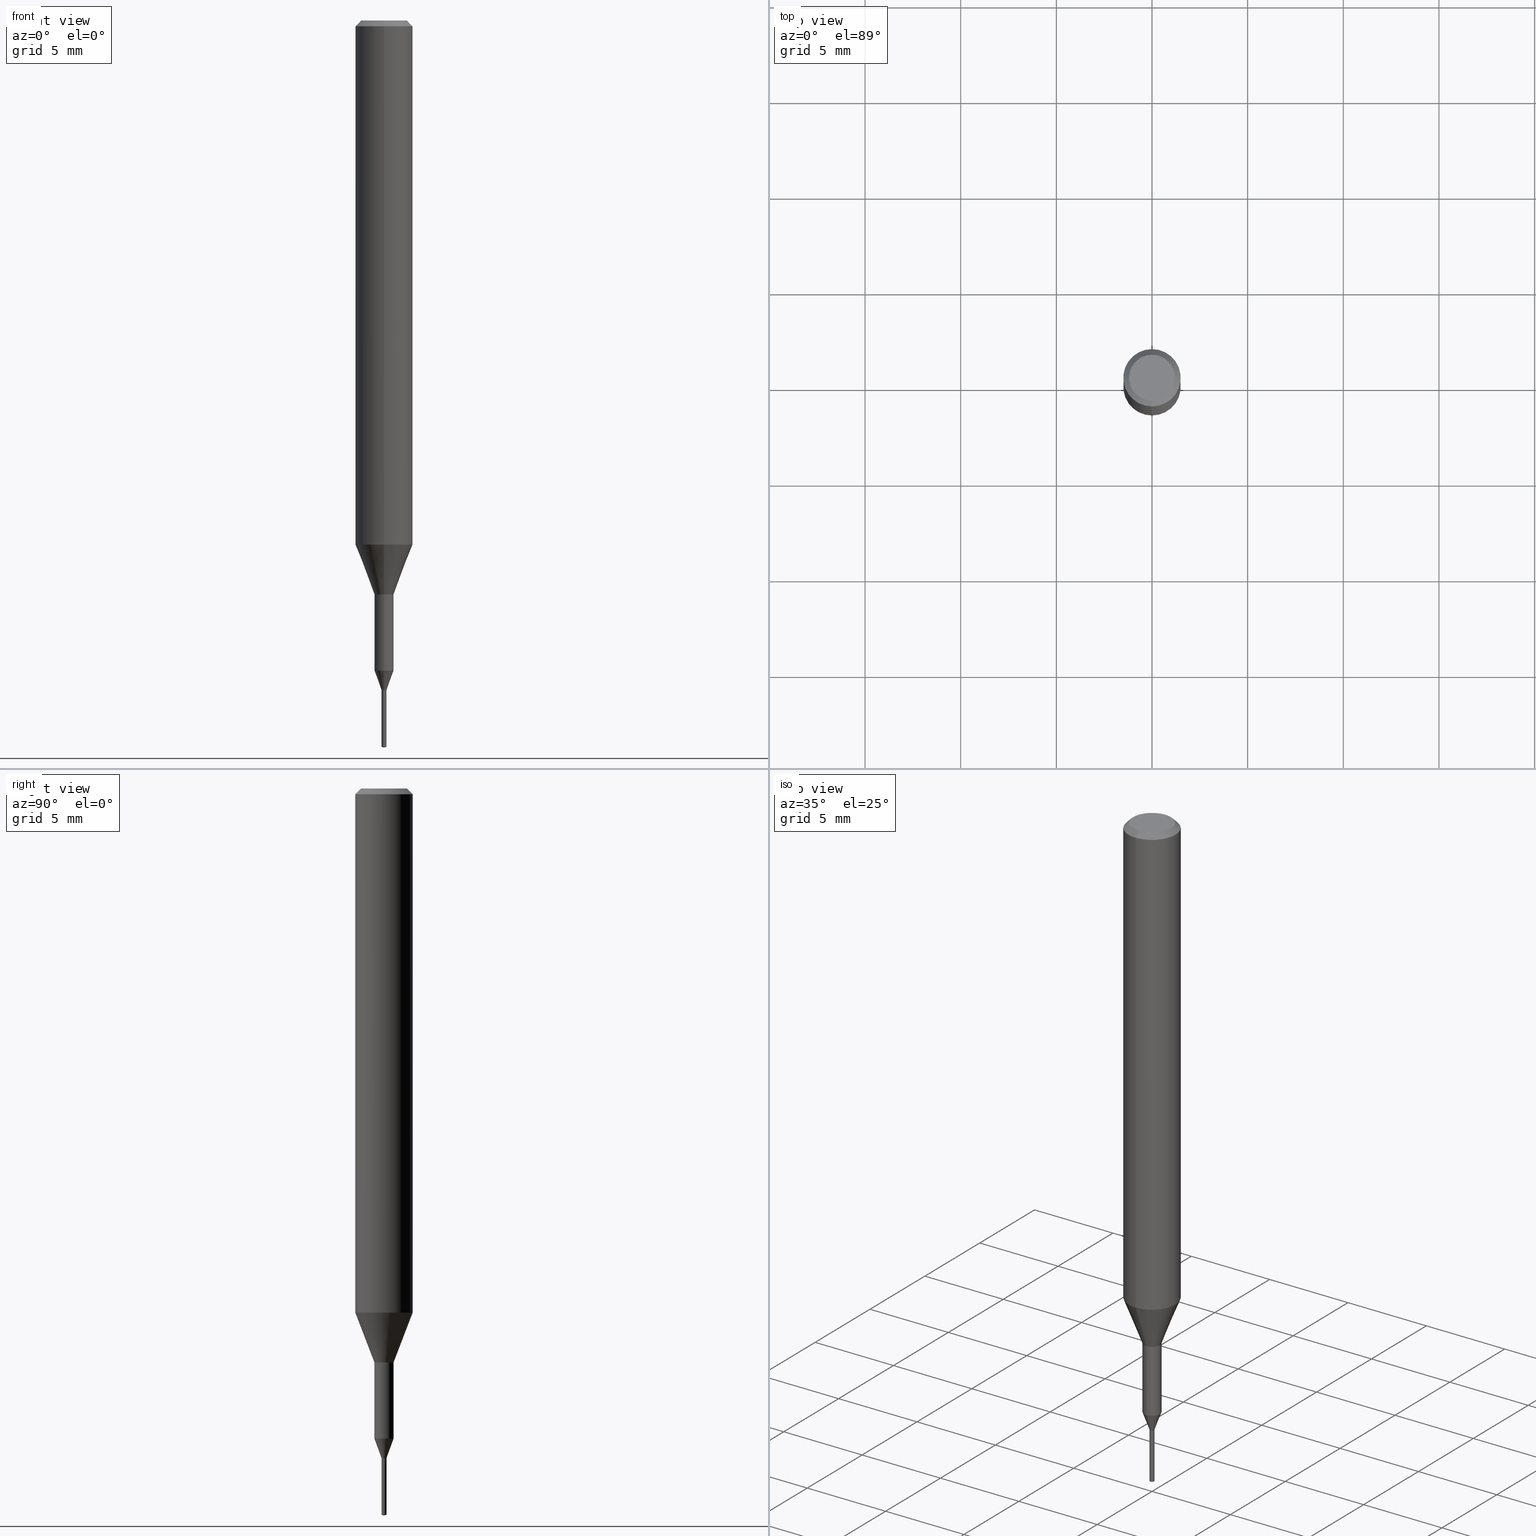
[diagram: canonical four-view strip — front | top / right | iso, engineering-drawing reading convention]
A machine part, canonical four-view strip (front | top / right | iso — engineering-drawing reading convention). The complete STEP part file that produces these views, byte-faithful:
ISO-10303-21;
HEADER;
FILE_DESCRIPTION(('no description'),'unknown implementation level');
FILE_NAME('C-UMD2026-030-Huellk.stp','  ',('CIMSOURCE GmbH'),('CADClick - KiM GmbH - www.kimweb.de'),'unknown preprocess','ACIS','unknown authorization');
FILE_SCHEMA(('automotive_design'));
ENDSEC;
DATA;
#1=MECHANICAL_DESIGN_GEOMETRIC_PRESENTATION_REPRESENTATION(' ',(#14,#15,#16,#17,#18,#19,#20,#21,#22,#23,#24,#25,#26,#27,#28,#29,#30,#31,#32,#33,#34,#35,#36,#37,#38,#39,#40,#41,#42,#43,#44,#45,#46,#47,#48,#49,#50,#51,#52,#53,#54,#55,#56,#57,#58,#59,#60,#61,#62,#63,#64,#65,#66,#67,#68,#69,#70,#71,#72,#73,#74,#75,#76,#77,#78,#79,#80,#81,#82,#83,#84,#85,#86,#87,#88,#89,#90,#91,#92),#10);
#2=PRODUCT_DEFINITION_CONTEXT('',#93,'design');
#3=APPLICATION_PROTOCOL_DEFINITION('INTERNATIONAL STANDARD','automotive_design',1994,#93);
#4=PRODUCT_CATEGORY_RELATIONSHIP('NONE','NONE',#94,#95);
#5=SHAPE_DEFINITION_REPRESENTATION(#96,#97);
#6=PRODUCT_DEFINITION_CONTEXT('',#98,'design');
#7=APPLICATION_PROTOCOL_DEFINITION('INTERNATIONAL STANDARD','automotive_design',1994,#98);
#8=PRODUCT_CATEGORY_RELATIONSHIP('NONE','NONE',#99,#100);
#9=SHAPE_DEFINITION_REPRESENTATION(#101,#102);
#10= (GEOMETRIC_REPRESENTATION_CONTEXT(3)GLOBAL_UNCERTAINTY_ASSIGNED_CONTEXT((#105))GLOBAL_UNIT_ASSIGNED_CONTEXT((#107,#108,#109))REPRESENTATION_CONTEXT('NONE','WORKSPACE'));
#14=STYLED_ITEM('',(#111),#112);
#15=STYLED_ITEM('',(#113),#114);
#16=STYLED_ITEM('',(#115),#116);
#17=STYLED_ITEM('',(#117),#118);
#18=STYLED_ITEM('',(#119),#120);
#19=STYLED_ITEM('',(#121),#122);
#20=STYLED_ITEM('',(#123),#124);
#21=STYLED_ITEM('',(#125),#126);
#22=STYLED_ITEM('',(#127),#128);
#23=STYLED_ITEM('',(#129),#130);
#24=STYLED_ITEM('',(#131),#132);
#25=STYLED_ITEM('',(#133),#134);
#26=STYLED_ITEM('',(#135),#136);
#27=STYLED_ITEM('',(#137),#138);
#28=STYLED_ITEM('',(#139),#140);
#29=STYLED_ITEM('',(#141),#142);
#30=STYLED_ITEM('',(#143),#144);
#31=STYLED_ITEM('',(#145),#146);
#32=STYLED_ITEM('',(#147),#148);
#33=STYLED_ITEM('',(#149),#150);
#34=STYLED_ITEM('',(#151),#152);
#35=STYLED_ITEM('',(#153),#154);
#36=STYLED_ITEM('',(#155),#156);
#37=STYLED_ITEM('',(#157),#158);
#38=STYLED_ITEM('',(#159),#160);
#39=STYLED_ITEM('',(#161),#162);
#40=STYLED_ITEM('',(#163),#164);
#41=STYLED_ITEM('',(#165),#166);
#42=STYLED_ITEM('',(#167),#168);
#43=STYLED_ITEM('',(#169),#170);
#44=STYLED_ITEM('',(#171),#172);
#45=STYLED_ITEM('',(#173),#174);
#46=STYLED_ITEM('',(#175),#176);
#47=STYLED_ITEM('',(#177),#178);
#48=STYLED_ITEM('',(#179),#180);
#49=STYLED_ITEM('',(#181),#182);
#50=STYLED_ITEM('',(#183),#184);
#51=STYLED_ITEM('',(#185),#186);
#52=STYLED_ITEM('',(#187),#188);
#53=STYLED_ITEM('',(#189),#190);
#54=STYLED_ITEM('',(#191),#192);
#55=STYLED_ITEM('',(#193),#194);
#56=STYLED_ITEM('',(#195),#196);
#57=STYLED_ITEM('',(#197),#198);
#58=STYLED_ITEM('',(#199),#200);
#59=STYLED_ITEM('',(#201),#202);
#60=STYLED_ITEM('',(#203),#204);
#61=STYLED_ITEM('',(#205),#206);
#62=STYLED_ITEM('',(#207),#208);
#63=STYLED_ITEM('',(#209),#210);
#64=STYLED_ITEM('',(#211),#212);
#65=STYLED_ITEM('',(#213),#214);
#66=STYLED_ITEM('',(#215),#216);
#67=STYLED_ITEM('',(#217),#218);
#68=STYLED_ITEM('',(#219),#220);
#69=STYLED_ITEM('',(#221),#222);
#70=STYLED_ITEM('',(#223),#224);
#71=STYLED_ITEM('',(#225),#226);
#72=STYLED_ITEM('',(#227),#228);
#73=STYLED_ITEM('',(#229),#230);
#74=STYLED_ITEM('',(#231),#232);
#75=STYLED_ITEM('',(#233),#234);
#76=STYLED_ITEM('',(#235),#236);
#77=STYLED_ITEM('',(#237),#238);
#78=STYLED_ITEM('',(#239),#240);
#79=STYLED_ITEM('',(#241),#242);
#80=STYLED_ITEM('',(#243),#244);
#81=STYLED_ITEM('',(#245),#246);
#82=STYLED_ITEM('',(#247),#248);
#83=STYLED_ITEM('',(#249),#250);
#84=STYLED_ITEM('',(#251),#252);
#85=STYLED_ITEM('',(#253),#254);
#86=STYLED_ITEM('',(#255),#256);
#87=STYLED_ITEM('',(#257),#258);
#88=STYLED_ITEM('',(#259),#260);
#89=STYLED_ITEM('',(#261),#262);
#90=STYLED_ITEM('',(#263),#264);
#91=STYLED_ITEM('',(#265),#266);
#92=STYLED_ITEM('',(#267),#268);
#93=APPLICATION_CONTEXT(' ');
#94=PRODUCT_CATEGORY('part','NONE');
#95=PRODUCT_RELATED_PRODUCT_CATEGORY('detail',' ',(#269));
#96=PRODUCT_DEFINITION_SHAPE('NONE','NONE',#270);
#97=ADVANCED_BREP_SHAPE_REPRESENTATION('1',(#226,#271),#10);
#98=APPLICATION_CONTEXT(' ');
#99=PRODUCT_CATEGORY('part','NONE');
#100=PRODUCT_RELATED_PRODUCT_CATEGORY('detail',' ',(#272));
#101=PRODUCT_DEFINITION_SHAPE('NONE','NONE',#273);
#102=ADVANCED_BREP_SHAPE_REPRESENTATION('2',(#114,#274),#10);
#105=UNCERTAINTY_MEASURE_WITH_UNIT(LENGTH_MEASURE(1.0E-006),#107,'','');
#107= (CONVERSION_BASED_UNIT('MILLIMETRE',#277)LENGTH_UNIT()NAMED_UNIT(#280));
#108= (NAMED_UNIT(#282)PLANE_ANGLE_UNIT()SI_UNIT($,.RADIAN.));
#109= (NAMED_UNIT(#282)SOLID_ANGLE_UNIT()SI_UNIT($,.STERADIAN.));
#111=PRESENTATION_STYLE_ASSIGNMENT((#288));
#112=EDGE_CURVE('',#172,#228,#289,.T.);
#113=PRESENTATION_STYLE_ASSIGNMENT((#290));
#114=MANIFOLD_SOLID_BREP('2',#291);
#115=PRESENTATION_STYLE_ASSIGNMENT((#292));
#116=VERTEX_POINT('',#293);
#117=PRESENTATION_STYLE_ASSIGNMENT((#294));
#118=VERTEX_POINT('',#295);
#119=PRESENTATION_STYLE_ASSIGNMENT((#296));
#120=VERTEX_POINT('',#297);
#121=PRESENTATION_STYLE_ASSIGNMENT((#298));
#122=ADVANCED_FACE('',(#299),#300,.T.);
#123=PRESENTATION_STYLE_ASSIGNMENT((#301));
#124=EDGE_CURVE('',#244,#116,#302,.T.);
#125=PRESENTATION_STYLE_ASSIGNMENT((#303));
#126=EDGE_CURVE('',#228,#116,#304,.T.);
#127=PRESENTATION_STYLE_ASSIGNMENT((#305));
#128=VERTEX_POINT('',#306);
#129=PRESENTATION_STYLE_ASSIGNMENT((#307));
#130=EDGE_CURVE('',#148,#234,#308,.T.);
#131=PRESENTATION_STYLE_ASSIGNMENT((#309));
#132=ADVANCED_FACE('',(#310),#311,.T.);
#133=PRESENTATION_STYLE_ASSIGNMENT((#312));
#134=VERTEX_POINT('',#313);
#135=PRESENTATION_STYLE_ASSIGNMENT((#314));
#136=EDGE_CURVE('',#120,#134,#315,.T.);
#137=PRESENTATION_STYLE_ASSIGNMENT((#316));
#138=EDGE_CURVE('',#234,#148,#317,.T.);
#139=PRESENTATION_STYLE_ASSIGNMENT((#318));
#140=EDGE_CURVE('',#184,#214,#319,.T.);
#141=PRESENTATION_STYLE_ASSIGNMENT((#320));
#142=EDGE_CURVE('',#154,#128,#321,.T.);
#143=PRESENTATION_STYLE_ASSIGNMENT((#322));
#144=ADVANCED_FACE('',(#323),#324,.T.);
#145=PRESENTATION_STYLE_ASSIGNMENT((#325));
#146=ADVANCED_FACE('',(#326),#327,.T.);
#147=PRESENTATION_STYLE_ASSIGNMENT((#328));
#148=VERTEX_POINT('',#329);
#149=PRESENTATION_STYLE_ASSIGNMENT((#330));
#150=ADVANCED_FACE('',(#331),#332,.T.);
#151=PRESENTATION_STYLE_ASSIGNMENT((#333));
#152=ADVANCED_FACE('',(#334),#335,.T.);
#153=PRESENTATION_STYLE_ASSIGNMENT((#336));
#154=VERTEX_POINT('',#337);
#155=PRESENTATION_STYLE_ASSIGNMENT((#338));
#156=ADVANCED_FACE('',(#339),#340,.T.);
#157=PRESENTATION_STYLE_ASSIGNMENT((#341));
#158=VERTEX_POINT('',#342);
#159=PRESENTATION_STYLE_ASSIGNMENT((#343));
#160=ADVANCED_FACE('',(#344),#345,.T.);
#161=PRESENTATION_STYLE_ASSIGNMENT((#346));
#162=EDGE_CURVE('',#258,#118,#347,.T.);
#163=PRESENTATION_STYLE_ASSIGNMENT((#348));
#164=EDGE_CURVE('',#172,#214,#349,.T.);
#165=PRESENTATION_STYLE_ASSIGNMENT((#350));
#166=EDGE_CURVE('',#118,#154,#351,.T.);
#167=PRESENTATION_STYLE_ASSIGNMENT((#352));
#168=ADVANCED_FACE('',(#353),#354,.T.);
#169=PRESENTATION_STYLE_ASSIGNMENT((#355));
#170=EDGE_CURVE('',#174,#118,#356,.T.);
#171=PRESENTATION_STYLE_ASSIGNMENT((#357));
#172=VERTEX_POINT('',#358);
#173=PRESENTATION_STYLE_ASSIGNMENT((#359));
#174=VERTEX_POINT('',#360);
#175=PRESENTATION_STYLE_ASSIGNMENT((#361));
#176=ADVANCED_FACE('',(#362),#363,.T.);
#177=PRESENTATION_STYLE_ASSIGNMENT((#364));
#178=EDGE_CURVE('',#246,#134,#365,.T.);
#179=PRESENTATION_STYLE_ASSIGNMENT((#366));
#180=ADVANCED_FACE('',(#367,#368),#369,.T.);
#181=PRESENTATION_STYLE_ASSIGNMENT((#370));
#182=EDGE_CURVE('',#154,#238,#371,.T.);
#183=PRESENTATION_STYLE_ASSIGNMENT((#372));
#184=VERTEX_POINT('',#373);
#185=PRESENTATION_STYLE_ASSIGNMENT((#374));
#186=EDGE_CURVE('',#116,#244,#375,.T.);
#187=PRESENTATION_STYLE_ASSIGNMENT((#376));
#188=ADVANCED_FACE('',(#377),#378,.T.);
#189=PRESENTATION_STYLE_ASSIGNMENT((#379));
#190=EDGE_CURVE('',#158,#238,#380,.T.);
#191=PRESENTATION_STYLE_ASSIGNMENT((#381));
#192=EDGE_CURVE('',#262,#174,#382,.T.);
#193=PRESENTATION_STYLE_ASSIGNMENT((#383));
#194=EDGE_CURVE('',#244,#184,#384,.T.);
#195=PRESENTATION_STYLE_ASSIGNMENT((#385));
#196=EDGE_CURVE('',#158,#128,#386,.T.);
#197=PRESENTATION_STYLE_ASSIGNMENT((#387));
#198=EDGE_CURVE('',#238,#158,#388,.T.);
#199=PRESENTATION_STYLE_ASSIGNMENT((#389));
#200=EDGE_CURVE('',#248,#264,#390,.T.);
#201=PRESENTATION_STYLE_ASSIGNMENT((#391));
#202=EDGE_CURVE('',#214,#172,#392,.T.);
#203=PRESENTATION_STYLE_ASSIGNMENT((#393));
#204=EDGE_CURVE('',#184,#228,#394,.T.);
#205=PRESENTATION_STYLE_ASSIGNMENT((#395));
#206=EDGE_CURVE('',#248,#246,#396,.T.);
#207=PRESENTATION_STYLE_ASSIGNMENT((#397));
#208=EDGE_CURVE('',#174,#262,#398,.T.);
#209=PRESENTATION_STYLE_ASSIGNMENT((#399));
#210=EDGE_CURVE('',#228,#184,#400,.T.);
#211=PRESENTATION_STYLE_ASSIGNMENT((#401));
#212=ADVANCED_FACE('',(#402),#403,.T.);
#213=PRESENTATION_STYLE_ASSIGNMENT((#404));
#214=VERTEX_POINT('',#405);
#215=PRESENTATION_STYLE_ASSIGNMENT((#406));
#216=EDGE_CURVE('',#246,#248,#407,.T.);
#217=PRESENTATION_STYLE_ASSIGNMENT((#408));
#218=ADVANCED_FACE('',(#409),#410,.T.);
#219=PRESENTATION_STYLE_ASSIGNMENT((#411));
#220=ADVANCED_FACE('',(#412),#413,.T.);
#221=PRESENTATION_STYLE_ASSIGNMENT((#414));
#222=EDGE_CURVE('',#118,#258,#415,.T.);
#223=PRESENTATION_STYLE_ASSIGNMENT((#416));
#224=EDGE_CURVE('',#258,#262,#417,.T.);
#225=PRESENTATION_STYLE_ASSIGNMENT((#418));
#226=MANIFOLD_SOLID_BREP('1',#419);
#227=PRESENTATION_STYLE_ASSIGNMENT((#420));
#228=VERTEX_POINT('',#421);
#229=PRESENTATION_STYLE_ASSIGNMENT((#422));
#230=ADVANCED_FACE('',(#423),#424,.T.);
#231=PRESENTATION_STYLE_ASSIGNMENT((#425));
#232=ADVANCED_FACE('',(#426),#427,.T.);
#233=PRESENTATION_STYLE_ASSIGNMENT((#428));
#234=VERTEX_POINT('',#429);
#235=PRESENTATION_STYLE_ASSIGNMENT((#430));
#236=EDGE_CURVE('',#148,#120,#431,.T.);
#237=PRESENTATION_STYLE_ASSIGNMENT((#432));
#238=VERTEX_POINT('',#433);
#239=PRESENTATION_STYLE_ASSIGNMENT((#434));
#240=EDGE_CURVE('',#134,#120,#435,.T.);
#241=PRESENTATION_STYLE_ASSIGNMENT((#436));
#242=ADVANCED_FACE('',(#437),#438,.T.);
#243=PRESENTATION_STYLE_ASSIGNMENT((#439));
#244=VERTEX_POINT('',#440);
#245=PRESENTATION_STYLE_ASSIGNMENT((#441));
#246=VERTEX_POINT('',#442);
#247=PRESENTATION_STYLE_ASSIGNMENT((#443));
#248=VERTEX_POINT('',#444);
#249=PRESENTATION_STYLE_ASSIGNMENT((#445));
#250=EDGE_CURVE('',#264,#246,#446,.T.);
#251=PRESENTATION_STYLE_ASSIGNMENT((#447));
#252=EDGE_CURVE('',#128,#154,#448,.T.);
#253=PRESENTATION_STYLE_ASSIGNMENT((#449));
#254=ADVANCED_FACE('',(#450),#451,.T.);
#255=PRESENTATION_STYLE_ASSIGNMENT((#452));
#256=ADVANCED_FACE('',(#453),#454,.T.);
#257=PRESENTATION_STYLE_ASSIGNMENT((#455));
#258=VERTEX_POINT('',#456);
#259=PRESENTATION_STYLE_ASSIGNMENT((#457));
#260=EDGE_CURVE('',#128,#258,#458,.T.);
#261=PRESENTATION_STYLE_ASSIGNMENT((#459));
#262=VERTEX_POINT('',#460);
#263=PRESENTATION_STYLE_ASSIGNMENT((#461));
#264=VERTEX_POINT('',#462);
#265=PRESENTATION_STYLE_ASSIGNMENT((#463));
#266=EDGE_CURVE('',#120,#248,#464,.T.);
#267=PRESENTATION_STYLE_ASSIGNMENT((#465));
#268=EDGE_CURVE('',#134,#234,#466,.T.);
#269=PRODUCT('1','1','PART-1-DESC',(#467));
#270=PRODUCT_DEFINITION('NONE','NONE',#468,#2);
#271=AXIS2_PLACEMENT_3D('',#469,#470,#471);
#272=PRODUCT('2','2','PART-2-DESC',(#472));
#273=PRODUCT_DEFINITION('NONE','NONE',#473,#6);
#274=AXIS2_PLACEMENT_3D('',#474,#475,#476);
#277=LENGTH_MEASURE_WITH_UNIT(LENGTH_MEASURE(1.0),#477);
#280=DIMENSIONAL_EXPONENTS(1.0,0.0,0.0,0.0,0.0,0.0,0.0);
#282=DIMENSIONAL_EXPONENTS(0.0,0.0,0.0,0.0,0.0,0.0,0.0);
#288=CURVE_STYLE('',#478,POSITIVE_LENGTH_MEASURE(1.0E-006),#479);
#289=LINE('',#480,#481);
#290=SURFACE_STYLE_USAGE(.BOTH.,#482);
#291=CLOSED_SHELL('',(#176,#218,#220,#168,#242,#254,#232));
#292=POINT_STYLE(' ',#483,POSITIVE_LENGTH_MEASURE(1.0E-006),#484);
#293=CARTESIAN_POINT('',(6.12241946593498E-017,-0.49995,-30.0));
#294=POINT_STYLE(' ',#485,POSITIVE_LENGTH_MEASURE(1.0E-006),#486);
#295=CARTESIAN_POINT('',(0.0,1.5,-0.300000000000001));
#296=POINT_STYLE(' ',#487,POSITIVE_LENGTH_MEASURE(1.0E-006),#488);
#297=CARTESIAN_POINT('',(-0.13,0.0,-35.0));
#298=SURFACE_STYLE_USAGE(.BOTH.,#489);
#299=FACE_OUTER_BOUND('',#490,.T.);
#300=CONICAL_SURFACE('',#491,1.0,0.366530581623394);
#301=CURVE_STYLE('',#492,POSITIVE_LENGTH_MEASURE(1.0E-006),#493);
#302=CIRCLE('',#494,0.49995);
#303=CURVE_STYLE('',#495,POSITIVE_LENGTH_MEASURE(1.0E-006),#496);
#304=LINE('',#497,#498);
#305=POINT_STYLE(' ',#499,POSITIVE_LENGTH_MEASURE(1.0E-006),#500);
#306=CARTESIAN_POINT('',(1.83690953073357E-016,-1.5,-27.395));
#307=CURVE_STYLE('',#501,POSITIVE_LENGTH_MEASURE(1.0E-006),#502);
#308=CIRCLE('',#503,0.131036381514258);
#309=SURFACE_STYLE_USAGE(.BOTH.,#504);
#310=FACE_OUTER_BOUND('',#505,.T.);
#311=CYLINDRICAL_SURFACE('',#506,0.49995);
#312=POINT_STYLE(' ',#507,POSITIVE_LENGTH_MEASURE(1.0E-006),#508);
#313=CARTESIAN_POINT('',(0.13,1.59198825996909E-017,-35.0));
#314=CURVE_STYLE('',#509,POSITIVE_LENGTH_MEASURE(1.0E-006),#510);
#315=CIRCLE('',#511,0.13);
#316=CURVE_STYLE('',#512,POSITIVE_LENGTH_MEASURE(1.0E-006),#513);
#317=CIRCLE('',#514,0.131036381514258);
#318=CURVE_STYLE('',#515,POSITIVE_LENGTH_MEASURE(1.0E-006),#516);
#319=LINE('',#517,#518);
#320=CURVE_STYLE('',#519,POSITIVE_LENGTH_MEASURE(1.0E-006),#520);
#321=CIRCLE('',#521,1.5);
#322=SURFACE_STYLE_USAGE(.BOTH.,#522);
#323=FACE_OUTER_BOUND('',#523,.T.);
#324=CONICAL_SURFACE('',#524,1.35,0.785398163397447);
#325=SURFACE_STYLE_USAGE(.BOTH.,#525);
#326=FACE_OUTER_BOUND('',#526,.T.);
#327=CYLINDRICAL_SURFACE('',#527,0.49995);
#328=POINT_STYLE(' ',#528,POSITIVE_LENGTH_MEASURE(1.0E-006),#529);
#329=CARTESIAN_POINT('',(-0.131036381514258,0.0,-34.9999));
#330=SURFACE_STYLE_USAGE(.BOTH.,#530);
#331=FACE_OUTER_BOUND('',#531,.T.);
#332=CONICAL_SURFACE('',#532,1.0,0.366530581623394);
#333=SURFACE_STYLE_USAGE(.BOTH.,#533);
#334=FACE_OUTER_BOUND('',#534,.T.);
#335=PLANE('',#535);
#336=POINT_STYLE(' ',#536,POSITIVE_LENGTH_MEASURE(1.0E-006),#537);
#337=CARTESIAN_POINT('',(0.0,1.5,-27.395));
#338=SURFACE_STYLE_USAGE(.BOTH.,#538);
#339=FACE_OUTER_BOUND('',#539,.T.);
#340=PLANE('',#540);
#341=POINT_STYLE(' ',#541,POSITIVE_LENGTH_MEASURE(1.0E-006),#542);
#342=CARTESIAN_POINT('',(6.12303176911189E-017,-0.5,-30.0));
#343=SURFACE_STYLE_USAGE(.BOTH.,#543);
#344=FACE_OUTER_BOUND('',#544,.T.);
#345=CONICAL_SURFACE('',#545,0.314993188298918,0.348885476062644);
#346=CURVE_STYLE('',#546,POSITIVE_LENGTH_MEASURE(1.0E-006),#547);
#347=CIRCLE('',#548,1.5);
#348=CURVE_STYLE('',#549,POSITIVE_LENGTH_MEASURE(1.0E-006),#550);
#349=CIRCLE('',#551,0.130036376597837);
#350=CURVE_STYLE('',#552,POSITIVE_LENGTH_MEASURE(1.0E-006),#553);
#351=LINE('',#554,#555);
#352=SURFACE_STYLE_USAGE(.BOTH.,#556);
#353=FACE_OUTER_BOUND('',#557,.T.);
#354=PLANE('',#558);
#355=CURVE_STYLE('',#559,POSITIVE_LENGTH_MEASURE(1.0E-006),#560);
#356=LINE('',#561,#562);
#357=POINT_STYLE(' ',#563,POSITIVE_LENGTH_MEASURE(1.0E-006),#564);
#358=CARTESIAN_POINT('',(1.5924337300975E-017,-0.130036376597837,-34.9999));
#359=POINT_STYLE(' ',#565,POSITIVE_LENGTH_MEASURE(1.0E-006),#566);
#360=CARTESIAN_POINT('',(0.0,1.2,0.0));
#361=SURFACE_STYLE_USAGE(.BOTH.,#567);
#362=FACE_OUTER_BOUND('',#568,.T.);
#363=CONICAL_SURFACE('',#569,0.065,1.3089969032258);
#364=CURVE_STYLE('',#570,POSITIVE_LENGTH_MEASURE(1.0E-006),#571);
#365=LINE('',#572,#573);
#366=SURFACE_STYLE_USAGE(.BOTH.,#574);
#367=FACE_BOUND('',#575,.T.);
#368=FACE_OUTER_BOUND('',#576,.T.);
#369=PLANE('',#577);
#370=CURVE_STYLE('',#578,POSITIVE_LENGTH_MEASURE(1.0E-006),#579);
#371=LINE('',#580,#581);
#372=POINT_STYLE(' ',#582,POSITIVE_LENGTH_MEASURE(1.0E-006),#583);
#373=CARTESIAN_POINT('',(0.0,0.49995,-33.983));
#374=CURVE_STYLE('',#584,POSITIVE_LENGTH_MEASURE(1.0E-006),#585);
#375=CIRCLE('',#586,0.49995);
#376=SURFACE_STYLE_USAGE(.BOTH.,#587);
#377=FACE_OUTER_BOUND('',#588,.T.);
#378=CONICAL_SURFACE('',#589,0.314993188298918,0.348885476062644);
#379=CURVE_STYLE('',#590,POSITIVE_LENGTH_MEASURE(1.0E-006),#591);
#380=CIRCLE('',#592,0.5);
#381=CURVE_STYLE('',#593,POSITIVE_LENGTH_MEASURE(1.0E-006),#594);
#382=CIRCLE('',#595,1.2);
#383=CURVE_STYLE('',#596,POSITIVE_LENGTH_MEASURE(1.0E-006),#597);
#384=LINE('',#598,#599);
#385=CURVE_STYLE('',#600,POSITIVE_LENGTH_MEASURE(1.0E-006),#601);
#386=LINE('',#602,#603);
#387=CURVE_STYLE('',#604,POSITIVE_LENGTH_MEASURE(1.0E-006),#605);
#388=CIRCLE('',#606,0.5);
#389=CURVE_STYLE('',#607,POSITIVE_LENGTH_MEASURE(1.0E-006),#608);
#390=LINE('',#609,#610);
#391=CURVE_STYLE('',#611,POSITIVE_LENGTH_MEASURE(1.0E-006),#612);
#392=CIRCLE('',#613,0.130036376597837);
#393=CURVE_STYLE('',#614,POSITIVE_LENGTH_MEASURE(1.0E-006),#615);
#394=CIRCLE('',#616,0.49995);
#395=CURVE_STYLE('',#617,POSITIVE_LENGTH_MEASURE(1.0E-006),#618);
#396=CIRCLE('',#619,0.13);
#397=CURVE_STYLE('',#620,POSITIVE_LENGTH_MEASURE(1.0E-006),#621);
#398=CIRCLE('',#622,1.2);
#399=CURVE_STYLE('',#623,POSITIVE_LENGTH_MEASURE(1.0E-006),#624);
#400=CIRCLE('',#625,0.49995);
#401=SURFACE_STYLE_USAGE(.BOTH.,#626);
#402=FACE_OUTER_BOUND('',#627,.T.);
#403=CONICAL_SURFACE('',#628,1.35,0.785398163397447);
#404=POINT_STYLE(' ',#629,POSITIVE_LENGTH_MEASURE(1.0E-006),#630);
#405=CARTESIAN_POINT('',(0.0,0.130036376597837,-34.9999));
#406=CURVE_STYLE('',#631,POSITIVE_LENGTH_MEASURE(1.0E-006),#632);
#407=CIRCLE('',#633,0.13);
#408=SURFACE_STYLE_USAGE(.BOTH.,#634);
#409=FACE_OUTER_BOUND('',#635,.T.);
#410=CYLINDRICAL_SURFACE('',#636,0.13);
#411=SURFACE_STYLE_USAGE(.BOTH.,#637);
#412=FACE_OUTER_BOUND('',#638,.T.);
#413=CONICAL_SURFACE('',#639,0.130518190757129,1.47460454838483);
#414=CURVE_STYLE('',#640,POSITIVE_LENGTH_MEASURE(1.0E-006),#641);
#415=CIRCLE('',#642,1.5);
#416=CURVE_STYLE('',#643,POSITIVE_LENGTH_MEASURE(1.0E-006),#644);
#417=LINE('',#645,#646);
#418=SURFACE_STYLE_USAGE(.BOTH.,#647);
#419=CLOSED_SHELL('',(#188,#146,#150,#230,#212,#156,#144,#256,#122,#180,#132,#160,#152));
#420=POINT_STYLE(' ',#648,POSITIVE_LENGTH_MEASURE(1.0E-006),#649);
#421=CARTESIAN_POINT('',(6.12241946593497E-017,-0.49995,-33.983));
#422=SURFACE_STYLE_USAGE(.BOTH.,#650);
#423=FACE_OUTER_BOUND('',#651,.T.);
#424=CYLINDRICAL_SURFACE('',#652,1.5);
#425=SURFACE_STYLE_USAGE(.BOTH.,#653);
#426=FACE_OUTER_BOUND('',#654,.T.);
#427=CONICAL_SURFACE('',#655,0.065,1.3089969032258);
#428=POINT_STYLE(' ',#656,POSITIVE_LENGTH_MEASURE(1.0E-006),#657);
#429=CARTESIAN_POINT('',(0.131036381514258,1.60467985384253E-017,-34.9999));
#430=CURVE_STYLE('',#658,POSITIVE_LENGTH_MEASURE(1.0E-006),#659);
#431=LINE('',#660,#661);
#432=POINT_STYLE(' ',#662,POSITIVE_LENGTH_MEASURE(1.0E-006),#663);
#433=CARTESIAN_POINT('',(0.0,0.5,-30.0));
#434=CURVE_STYLE('',#664,POSITIVE_LENGTH_MEASURE(1.0E-006),#665);
#435=CIRCLE('',#666,0.13);
#436=SURFACE_STYLE_USAGE(.BOTH.,#667);
#437=FACE_OUTER_BOUND('',#668,.T.);
#438=CONICAL_SURFACE('',#669,0.130518190757129,1.47460454838483);
#439=POINT_STYLE(' ',#670,POSITIVE_LENGTH_MEASURE(1.0E-006),#671);
#440=CARTESIAN_POINT('',(0.0,0.49995,-30.0));
#441=POINT_STYLE(' ',#672,POSITIVE_LENGTH_MEASURE(1.0E-006),#673);
#442=CARTESIAN_POINT('',(0.13,1.59198825996909E-017,-37.9651666));
#443=POINT_STYLE(' ',#674,POSITIVE_LENGTH_MEASURE(1.0E-006),#675);
#444=CARTESIAN_POINT('',(-0.13,0.0,-37.9651666));
#445=CURVE_STYLE('',#676,POSITIVE_LENGTH_MEASURE(1.0E-006),#677);
#446=LINE('',#678,#679);
#447=CURVE_STYLE('',#680,POSITIVE_LENGTH_MEASURE(1.0E-006),#681);
#448=CIRCLE('',#682,1.5);
#449=SURFACE_STYLE_USAGE(.BOTH.,#683);
#450=FACE_OUTER_BOUND('',#684,.T.);
#451=CYLINDRICAL_SURFACE('',#685,0.13);
#452=SURFACE_STYLE_USAGE(.BOTH.,#686);
#453=FACE_OUTER_BOUND('',#687,.T.);
#454=CYLINDRICAL_SURFACE('',#688,1.5);
#455=POINT_STYLE(' ',#689,POSITIVE_LENGTH_MEASURE(1.0E-006),#690);
#456=CARTESIAN_POINT('',(1.83690953073357E-016,-1.5,-0.300000000000001));
#457=CURVE_STYLE('',#691,POSITIVE_LENGTH_MEASURE(1.0E-006),#692);
#458=LINE('',#693,#694);
#459=POINT_STYLE(' ',#695,POSITIVE_LENGTH_MEASURE(1.0E-006),#696);
#460=CARTESIAN_POINT('',(1.46952762458685E-016,-1.2,0.0));
#461=POINT_STYLE(' ',#697,POSITIVE_LENGTH_MEASURE(1.0E-006),#698);
#462=CARTESIAN_POINT('',(0.0,0.0,-38.0));
#463=CURVE_STYLE('',#699,POSITIVE_LENGTH_MEASURE(1.0E-006),#700);
#464=LINE('',#701,#702);
#465=CURVE_STYLE('',#703,POSITIVE_LENGTH_MEASURE(1.0E-006),#704);
#466=LINE('',#705,#706);
#467=PRODUCT_CONTEXT('',#93,'mechanical');
#468=PRODUCT_DEFINITION_FORMATION_WITH_SPECIFIED_SOURCE(' ','NONE',#269,.NOT_KNOWN.);
#469=CARTESIAN_POINT('',(0.0,0.0,0.0));
#470=DIRECTION('',(0.0,0.0,1.0));
#471=DIRECTION('',(1.0,0.0,0.0));
#472=PRODUCT_CONTEXT('',#98,'mechanical');
#473=PRODUCT_DEFINITION_FORMATION_WITH_SPECIFIED_SOURCE(' ','NONE',#272,.NOT_KNOWN.);
#474=CARTESIAN_POINT('',(0.0,0.0,0.0));
#475=DIRECTION('',(0.0,0.0,1.0));
#476=DIRECTION('',(1.0,0.0,0.0));
#477= (NAMED_UNIT(#280)LENGTH_UNIT()SI_UNIT(.MILLI.,.METRE.));
#478=DRAUGHTING_PRE_DEFINED_CURVE_FONT('continuous');
#479=COLOUR_RGB('',0.498039215803146,0.498039215803146,0.498039215803146);
#480=CARTESIAN_POINT('',(3.85742659801624E-017,-0.314993188298918,-34.49145));
#481=VECTOR('',#708,1.0);
#482=SURFACE_SIDE_STYLE('',(#709));
#483=PRE_DEFINED_MARKER('');
#484=COLOUR_RGB('',0.498039215803146,0.498039215803146,0.498039215803146);
#485=PRE_DEFINED_MARKER('');
#486=COLOUR_RGB('',0.498039215803146,0.498039215803146,0.498039215803146);
#487=PRE_DEFINED_MARKER('');
#488=COLOUR_RGB('',0.800000011920929,0.800000011920929,0.800000011920929);
#489=SURFACE_SIDE_STYLE('',(#710));
#490=EDGE_LOOP('',(#711,#712,#713,#714));
#491=AXIS2_PLACEMENT_3D('',#715,#716,#717);
#492=DRAUGHTING_PRE_DEFINED_CURVE_FONT('continuous');
#493=COLOUR_RGB('',0.498039215803146,0.498039215803146,0.498039215803146);
#494=AXIS2_PLACEMENT_3D('',#718,#719,#720);
#495=DRAUGHTING_PRE_DEFINED_CURVE_FONT('continuous');
#496=COLOUR_RGB('',0.498039215803146,0.498039215803146,0.498039215803146);
#497=CARTESIAN_POINT('',(6.12241946593497E-017,-0.49995,-31.9915));
#498=VECTOR('',#721,1.0);
#499=PRE_DEFINED_MARKER('');
#500=COLOUR_RGB('',0.498039215803146,0.498039215803146,0.498039215803146);
#501=DRAUGHTING_PRE_DEFINED_CURVE_FONT('continuous');
#502=COLOUR_RGB('',0.800000011920929,0.800000011920929,0.800000011920929);
#503=AXIS2_PLACEMENT_3D('',#722,#723,#724);
#504=SURFACE_SIDE_STYLE('',(#725));
#505=EDGE_LOOP('',(#726,#727,#728,#729));
#506=AXIS2_PLACEMENT_3D('',#730,#731,#732);
#507=PRE_DEFINED_MARKER('');
#508=COLOUR_RGB('',0.800000011920929,0.800000011920929,0.800000011920929);
#509=DRAUGHTING_PRE_DEFINED_CURVE_FONT('continuous');
#510=COLOUR_RGB('',0.800000011920929,0.800000011920929,0.800000011920929);
#511=AXIS2_PLACEMENT_3D('',#733,#734,#735);
#512=DRAUGHTING_PRE_DEFINED_CURVE_FONT('continuous');
#513=COLOUR_RGB('',0.800000011920929,0.800000011920929,0.800000011920929);
#514=AXIS2_PLACEMENT_3D('',#736,#737,#738);
#515=DRAUGHTING_PRE_DEFINED_CURVE_FONT('continuous');
#516=COLOUR_RGB('',0.498039215803146,0.498039215803146,0.498039215803146);
#517=CARTESIAN_POINT('',(-3.85742659801624E-017,0.314993188298918,-34.49145));
#518=VECTOR('',#739,1.0);
#519=DRAUGHTING_PRE_DEFINED_CURVE_FONT('continuous');
#520=COLOUR_RGB('',0.498039215803146,0.498039215803146,0.498039215803146);
#521=AXIS2_PLACEMENT_3D('',#740,#741,#742);
#522=SURFACE_SIDE_STYLE('',(#743));
#523=EDGE_LOOP('',(#744,#745,#746,#747));
#524=AXIS2_PLACEMENT_3D('',#748,#749,#750);
#525=SURFACE_SIDE_STYLE('',(#751));
#526=EDGE_LOOP('',(#752,#753,#754,#755));
#527=AXIS2_PLACEMENT_3D('',#756,#757,#758);
#528=PRE_DEFINED_MARKER('');
#529=COLOUR_RGB('',0.800000011920929,0.800000011920929,0.800000011920929);
#530=SURFACE_SIDE_STYLE('',(#759));
#531=EDGE_LOOP('',(#760,#761,#762,#763));
#532=AXIS2_PLACEMENT_3D('',#764,#765,#766);
#533=SURFACE_SIDE_STYLE('',(#767));
#534=EDGE_LOOP('',(#768,#769));
#535=AXIS2_PLACEMENT_3D('',#770,#771,#772);
#536=PRE_DEFINED_MARKER('');
#537=COLOUR_RGB('',0.498039215803146,0.498039215803146,0.498039215803146);
#538=SURFACE_SIDE_STYLE('',(#773));
#539=EDGE_LOOP('',(#774,#775));
#540=AXIS2_PLACEMENT_3D('',#776,#777,#778);
#541=PRE_DEFINED_MARKER('');
#542=COLOUR_RGB('',0.498039215803146,0.498039215803146,0.498039215803146);
#543=SURFACE_SIDE_STYLE('',(#779));
#544=EDGE_LOOP('',(#780,#781,#782,#783));
#545=AXIS2_PLACEMENT_3D('',#784,#785,#786);
#546=DRAUGHTING_PRE_DEFINED_CURVE_FONT('continuous');
#547=COLOUR_RGB('',0.498039215803146,0.498039215803146,0.498039215803146);
#548=AXIS2_PLACEMENT_3D('',#787,#788,#789);
#549=DRAUGHTING_PRE_DEFINED_CURVE_FONT('continuous');
#550=COLOUR_RGB('',0.498039215803146,0.498039215803146,0.498039215803146);
#551=AXIS2_PLACEMENT_3D('',#790,#791,#792);
#552=DRAUGHTING_PRE_DEFINED_CURVE_FONT('continuous');
#553=COLOUR_RGB('',0.498039215803146,0.498039215803146,0.498039215803146);
#554=CARTESIAN_POINT('',(-1.83690953073357E-016,1.5,-13.8475));
#555=VECTOR('',#793,1.0);
#556=SURFACE_SIDE_STYLE('',(#794));
#557=EDGE_LOOP('',(#795,#796));
#558=AXIS2_PLACEMENT_3D('',#797,#798,#799);
#559=DRAUGHTING_PRE_DEFINED_CURVE_FONT('continuous');
#560=COLOUR_RGB('',0.498039215803146,0.498039215803146,0.498039215803146);
#561=CARTESIAN_POINT('',(-1.65321857766021E-016,1.35,-0.150000000000002));
#562=VECTOR('',#800,1.0);
#563=PRE_DEFINED_MARKER('');
#564=COLOUR_RGB('',0.498039215803146,0.498039215803146,0.498039215803146);
#565=PRE_DEFINED_MARKER('');
#566=COLOUR_RGB('',0.498039215803146,0.498039215803146,0.498039215803146);
#567=SURFACE_SIDE_STYLE('',(#801));
#568=EDGE_LOOP('',(#802,#803,#804));
#569=AXIS2_PLACEMENT_3D('',#805,#806,#807);
#570=DRAUGHTING_PRE_DEFINED_CURVE_FONT('continuous');
#571=COLOUR_RGB('',0.800000011920929,0.800000011920929,0.800000011920929);
#572=CARTESIAN_POINT('',(0.13,1.59198825996909E-017,-36.4825833));
#573=VECTOR('',#808,1.0);
#574=SURFACE_SIDE_STYLE('',(#809));
#575=EDGE_LOOP('',(#810,#811));
#576=EDGE_LOOP('',(#812,#813));
#577=AXIS2_PLACEMENT_3D('',#814,#815,#816);
#578=DRAUGHTING_PRE_DEFINED_CURVE_FONT('continuous');
#579=COLOUR_RGB('',0.498039215803146,0.498039215803146,0.498039215803146);
#580=CARTESIAN_POINT('',(-1.22460635382238E-016,1.0,-28.6975));
#581=VECTOR('',#817,1.0);
#582=PRE_DEFINED_MARKER('');
#583=COLOUR_RGB('',0.498039215803146,0.498039215803146,0.498039215803146);
#584=DRAUGHTING_PRE_DEFINED_CURVE_FONT('continuous');
#585=COLOUR_RGB('',0.498039215803146,0.498039215803146,0.498039215803146);
#586=AXIS2_PLACEMENT_3D('',#818,#819,#820);
#587=SURFACE_SIDE_STYLE('',(#821));
#588=EDGE_LOOP('',(#822,#823,#824,#825));
#589=AXIS2_PLACEMENT_3D('',#826,#827,#828);
#590=DRAUGHTING_PRE_DEFINED_CURVE_FONT('continuous');
#591=COLOUR_RGB('',0.498039215803146,0.498039215803146,0.498039215803146);
#592=AXIS2_PLACEMENT_3D('',#829,#830,#831);
#593=DRAUGHTING_PRE_DEFINED_CURVE_FONT('continuous');
#594=COLOUR_RGB('',0.498039215803146,0.498039215803146,0.498039215803146);
#595=AXIS2_PLACEMENT_3D('',#832,#833,#834);
#596=DRAUGHTING_PRE_DEFINED_CURVE_FONT('continuous');
#597=COLOUR_RGB('',0.498039215803146,0.498039215803146,0.498039215803146);
#598=CARTESIAN_POINT('',(-6.12241946593497E-017,0.49995,-31.9915));
#599=VECTOR('',#835,1.0);
#600=DRAUGHTING_PRE_DEFINED_CURVE_FONT('continuous');
#601=COLOUR_RGB('',0.498039215803146,0.498039215803146,0.498039215803146);
#602=CARTESIAN_POINT('',(1.22460635382238E-016,-1.0,-28.6975));
#603=VECTOR('',#836,1.0);
#604=DRAUGHTING_PRE_DEFINED_CURVE_FONT('continuous');
#605=COLOUR_RGB('',0.498039215803146,0.498039215803146,0.498039215803146);
#606=AXIS2_PLACEMENT_3D('',#837,#838,#839);
#607=DRAUGHTING_PRE_DEFINED_CURVE_FONT('continuous');
#608=COLOUR_RGB('',0.800000011920929,0.800000011920929,0.800000011920929);
#609=CARTESIAN_POINT('',(-0.065,-7.95994129984545E-018,-37.9825833));
#610=VECTOR('',#840,1.0);
#611=DRAUGHTING_PRE_DEFINED_CURVE_FONT('continuous');
#612=COLOUR_RGB('',0.498039215803146,0.498039215803146,0.498039215803146);
#613=AXIS2_PLACEMENT_3D('',#841,#842,#843);
#614=DRAUGHTING_PRE_DEFINED_CURVE_FONT('continuous');
#615=COLOUR_RGB('',0.498039215803146,0.498039215803146,0.498039215803146);
#616=AXIS2_PLACEMENT_3D('',#844,#845,#846);
#617=DRAUGHTING_PRE_DEFINED_CURVE_FONT('continuous');
#618=COLOUR_RGB('',0.800000011920929,0.800000011920929,0.800000011920929);
#619=AXIS2_PLACEMENT_3D('',#847,#848,#849);
#620=DRAUGHTING_PRE_DEFINED_CURVE_FONT('continuous');
#621=COLOUR_RGB('',0.498039215803146,0.498039215803146,0.498039215803146);
#622=AXIS2_PLACEMENT_3D('',#850,#851,#852);
#623=DRAUGHTING_PRE_DEFINED_CURVE_FONT('continuous');
#624=COLOUR_RGB('',0.498039215803146,0.498039215803146,0.498039215803146);
#625=AXIS2_PLACEMENT_3D('',#853,#854,#855);
#626=SURFACE_SIDE_STYLE('',(#856));
#627=EDGE_LOOP('',(#857,#858,#859,#860));
#628=AXIS2_PLACEMENT_3D('',#861,#862,#863);
#629=PRE_DEFINED_MARKER('');
#630=COLOUR_RGB('',0.498039215803146,0.498039215803146,0.498039215803146);
#631=DRAUGHTING_PRE_DEFINED_CURVE_FONT('continuous');
#632=COLOUR_RGB('',0.800000011920929,0.800000011920929,0.800000011920929);
#633=AXIS2_PLACEMENT_3D('',#864,#865,#866);
#634=SURFACE_SIDE_STYLE('',(#867));
#635=EDGE_LOOP('',(#868,#869,#870,#871));
#636=AXIS2_PLACEMENT_3D('',#872,#873,#874);
#637=SURFACE_SIDE_STYLE('',(#875));
#638=EDGE_LOOP('',(#876,#877,#878,#879));
#639=AXIS2_PLACEMENT_3D('',#880,#881,#882);
#640=DRAUGHTING_PRE_DEFINED_CURVE_FONT('continuous');
#641=COLOUR_RGB('',0.498039215803146,0.498039215803146,0.498039215803146);
#642=AXIS2_PLACEMENT_3D('',#883,#884,#885);
#643=DRAUGHTING_PRE_DEFINED_CURVE_FONT('continuous');
#644=COLOUR_RGB('',0.498039215803146,0.498039215803146,0.498039215803146);
#645=CARTESIAN_POINT('',(1.65321857766021E-016,-1.35,-0.150000000000002));
#646=VECTOR('',#886,1.0);
#647=SURFACE_SIDE_STYLE('',(#887));
#648=PRE_DEFINED_MARKER('');
#649=COLOUR_RGB('',0.498039215803146,0.498039215803146,0.498039215803146);
#650=SURFACE_SIDE_STYLE('',(#888));
#651=EDGE_LOOP('',(#889,#890,#891,#892));
#652=AXIS2_PLACEMENT_3D('',#893,#894,#895);
#653=SURFACE_SIDE_STYLE('',(#896));
#654=EDGE_LOOP('',(#897,#898,#899));
#655=AXIS2_PLACEMENT_3D('',#900,#901,#902);
#656=PRE_DEFINED_MARKER('');
#657=COLOUR_RGB('',0.800000011920929,0.800000011920929,0.800000011920929);
#658=DRAUGHTING_PRE_DEFINED_CURVE_FONT('continuous');
#659=COLOUR_RGB('',0.800000011920929,0.800000011920929,0.800000011920929);
#660=CARTESIAN_POINT('',(-0.130518190757129,-1.59833405690581E-017,-34.99995));
#661=VECTOR('',#903,1.0);
#662=PRE_DEFINED_MARKER('');
#663=COLOUR_RGB('',0.498039215803146,0.498039215803146,0.498039215803146);
#664=DRAUGHTING_PRE_DEFINED_CURVE_FONT('continuous');
#665=COLOUR_RGB('',0.800000011920929,0.800000011920929,0.800000011920929);
#666=AXIS2_PLACEMENT_3D('',#904,#905,#906);
#667=SURFACE_SIDE_STYLE('',(#907));
#668=EDGE_LOOP('',(#908,#909,#910,#911));
#669=AXIS2_PLACEMENT_3D('',#912,#913,#914);
#670=PRE_DEFINED_MARKER('');
#671=COLOUR_RGB('',0.498039215803146,0.498039215803146,0.498039215803146);
#672=PRE_DEFINED_MARKER('');
#673=COLOUR_RGB('',0.800000011920929,0.800000011920929,0.800000011920929);
#674=PRE_DEFINED_MARKER('');
#675=COLOUR_RGB('',0.800000011920929,0.800000011920929,0.800000011920929);
#676=DRAUGHTING_PRE_DEFINED_CURVE_FONT('continuous');
#677=COLOUR_RGB('',0.800000011920929,0.800000011920929,0.800000011920929);
#678=CARTESIAN_POINT('',(0.065,7.95994129984545E-018,-37.9825833));
#679=VECTOR('',#915,1.0);
#680=DRAUGHTING_PRE_DEFINED_CURVE_FONT('continuous');
#681=COLOUR_RGB('',0.498039215803146,0.498039215803146,0.498039215803146);
#682=AXIS2_PLACEMENT_3D('',#916,#917,#918);
#683=SURFACE_SIDE_STYLE('',(#919));
#684=EDGE_LOOP('',(#920,#921,#922,#923));
#685=AXIS2_PLACEMENT_3D('',#924,#925,#926);
#686=SURFACE_SIDE_STYLE('',(#927));
#687=EDGE_LOOP('',(#928,#929,#930,#931));
#688=AXIS2_PLACEMENT_3D('',#932,#933,#934);
#689=PRE_DEFINED_MARKER('');
#690=COLOUR_RGB('',0.498039215803146,0.498039215803146,0.498039215803146);
#691=DRAUGHTING_PRE_DEFINED_CURVE_FONT('continuous');
#692=COLOUR_RGB('',0.498039215803146,0.498039215803146,0.498039215803146);
#693=CARTESIAN_POINT('',(1.83690953073357E-016,-1.5,-13.8475));
#694=VECTOR('',#935,1.0);
#695=PRE_DEFINED_MARKER('');
#696=COLOUR_RGB('',0.498039215803146,0.498039215803146,0.498039215803146);
#697=PRE_DEFINED_MARKER('');
#698=COLOUR_RGB('',0.800000011920929,0.800000011920929,0.800000011920929);
#699=DRAUGHTING_PRE_DEFINED_CURVE_FONT('continuous');
#700=COLOUR_RGB('',0.800000011920929,0.800000011920929,0.800000011920929);
#701=CARTESIAN_POINT('',(-0.13,-1.59198825996909E-017,-36.4825833));
#702=VECTOR('',#936,1.0);
#703=DRAUGHTING_PRE_DEFINED_CURVE_FONT('continuous');
#704=COLOUR_RGB('',0.800000011920929,0.800000011920929,0.800000011920929);
#705=CARTESIAN_POINT('',(0.130518190757129,1.59833405690581E-017,-34.99995));
#706=VECTOR('',#937,1.0);
#708=DIRECTION('',(4.18632467431052E-017,-0.341850641330065,0.939754297155498));
#709=SURFACE_STYLE_FILL_AREA(#938);
#710=SURFACE_STYLE_FILL_AREA(#939);
#711=ORIENTED_EDGE('',*,*,#182,.T.);
#712=ORIENTED_EDGE('',*,*,#190,.F.);
#713=ORIENTED_EDGE('',*,*,#196,.T.);
#714=ORIENTED_EDGE('',*,*,#252,.T.);
#715=CARTESIAN_POINT('',(0.0,0.0,-28.6975));
#716=DIRECTION('',(-0.0,-0.0,1.0));
#717=DIRECTION('',(0.0,1.0,0.0));
#718=CARTESIAN_POINT('',(0.0,0.0,-30.0));
#719=DIRECTION('',(0.0,0.0,-1.0));
#720=DIRECTION('',(0.0,1.0,0.0));
#721=DIRECTION('',(-0.0,-0.0,1.0));
#722=CARTESIAN_POINT('',(0.0,0.0,-34.9999));
#723=DIRECTION('',(0.0,0.0,-1.0));
#724=DIRECTION('',(-1.0,0.0,0.0));
#725=SURFACE_STYLE_FILL_AREA(#940);
#726=ORIENTED_EDGE('',*,*,#194,.T.);
#727=ORIENTED_EDGE('',*,*,#210,.F.);
#728=ORIENTED_EDGE('',*,*,#126,.T.);
#729=ORIENTED_EDGE('',*,*,#186,.T.);
#730=CARTESIAN_POINT('',(0.0,0.0,-31.9915));
#731=DIRECTION('',(-0.0,-0.0,1.0));
#732=DIRECTION('',(0.0,1.0,0.0));
#733=CARTESIAN_POINT('',(0.0,0.0,-35.0));
#734=DIRECTION('',(0.0,0.0,-1.0));
#735=DIRECTION('',(-1.0,0.0,0.0));
#736=CARTESIAN_POINT('',(0.0,0.0,-34.9999));
#737=DIRECTION('',(0.0,0.0,-1.0));
#738=DIRECTION('',(-1.0,0.0,0.0));
#739=DIRECTION('',(4.18632467431052E-017,-0.341850641330065,-0.939754297155498));
#740=CARTESIAN_POINT('',(0.0,0.0,-27.395));
#741=DIRECTION('',(0.0,0.0,-1.0));
#742=DIRECTION('',(0.0,1.0,0.0));
#743=SURFACE_STYLE_FILL_AREA(#941);
#744=ORIENTED_EDGE('',*,*,#170,.T.);
#745=ORIENTED_EDGE('',*,*,#162,.F.);
#746=ORIENTED_EDGE('',*,*,#224,.T.);
#747=ORIENTED_EDGE('',*,*,#192,.T.);
#748=CARTESIAN_POINT('',(0.0,0.0,-0.150000000000002));
#749=DIRECTION('',(0.0,-0.0,-1.0));
#750=DIRECTION('',(0.0,1.0,0.0));
#751=SURFACE_STYLE_FILL_AREA(#942);
#752=ORIENTED_EDGE('',*,*,#194,.F.);
#753=ORIENTED_EDGE('',*,*,#124,.T.);
#754=ORIENTED_EDGE('',*,*,#126,.F.);
#755=ORIENTED_EDGE('',*,*,#204,.F.);
#756=CARTESIAN_POINT('',(0.0,0.0,-31.9915));
#757=DIRECTION('',(-0.0,-0.0,1.0));
#758=DIRECTION('',(0.0,1.0,0.0));
#759=SURFACE_STYLE_FILL_AREA(#943);
#760=ORIENTED_EDGE('',*,*,#182,.F.);
#761=ORIENTED_EDGE('',*,*,#142,.T.);
#762=ORIENTED_EDGE('',*,*,#196,.F.);
#763=ORIENTED_EDGE('',*,*,#198,.F.);
#764=CARTESIAN_POINT('',(0.0,0.0,-28.6975));
#765=DIRECTION('',(-0.0,-0.0,1.0));
#766=DIRECTION('',(0.0,1.0,0.0));
#767=SURFACE_STYLE_FILL_AREA(#944);
#768=ORIENTED_EDGE('',*,*,#202,.T.);
#769=ORIENTED_EDGE('',*,*,#164,.T.);
#770=CARTESIAN_POINT('',(0.0,0.0650181882989184,-34.9999));
#771=DIRECTION('',(0.0,0.0,-1.0));
#772=DIRECTION('',(0.0,1.0,0.0));
#773=SURFACE_STYLE_FILL_AREA(#945);
#774=ORIENTED_EDGE('',*,*,#208,.F.);
#775=ORIENTED_EDGE('',*,*,#192,.F.);
#776=CARTESIAN_POINT('',(0.0,0.6,0.0));
#777=DIRECTION('',(-0.0,0.0,1.0));
#778=DIRECTION('',(0.0,-1.0,0.0));
#779=SURFACE_STYLE_FILL_AREA(#946);
#780=ORIENTED_EDGE('',*,*,#140,.T.);
#781=ORIENTED_EDGE('',*,*,#164,.F.);
#782=ORIENTED_EDGE('',*,*,#112,.T.);
#783=ORIENTED_EDGE('',*,*,#210,.T.);
#784=CARTESIAN_POINT('',(0.0,0.0,-34.49145));
#785=DIRECTION('',(-0.0,-0.0,1.0));
#786=DIRECTION('',(0.0,1.0,0.0));
#787=CARTESIAN_POINT('',(0.0,0.0,-0.300000000000001));
#788=DIRECTION('',(0.0,0.0,-1.0));
#789=DIRECTION('',(0.0,1.0,0.0));
#790=CARTESIAN_POINT('',(0.0,0.0,-34.9999));
#791=DIRECTION('',(0.0,0.0,-1.0));
#792=DIRECTION('',(0.0,1.0,0.0));
#793=DIRECTION('',(0.0,0.0,-1.0));
#794=SURFACE_STYLE_FILL_AREA(#947);
#795=ORIENTED_EDGE('',*,*,#130,.F.);
#796=ORIENTED_EDGE('',*,*,#138,.F.);
#797=CARTESIAN_POINT('',(-0.0655181907571288,0.0,-34.9999));
#798=DIRECTION('',(0.0,0.0,1.0));
#799=DIRECTION('',(1.0,0.0,0.0));
#800=DIRECTION('',(-8.65927457071934E-017,0.707106781186546,-0.707106781186549));
#801=SURFACE_STYLE_FILL_AREA(#948);
#802=ORIENTED_EDGE('',*,*,#250,.F.);
#803=ORIENTED_EDGE('',*,*,#200,.F.);
#804=ORIENTED_EDGE('',*,*,#206,.T.);
#805=CARTESIAN_POINT('',(0.0,0.0,-37.9825833));
#806=DIRECTION('',(-0.0,-0.0,1.0));
#807=DIRECTION('',(-1.0,0.0,0.0));
#808=DIRECTION('',(-0.0,-0.0,1.0));
#809=SURFACE_STYLE_FILL_AREA(#949);
#810=ORIENTED_EDGE('',*,*,#124,.F.);
#811=ORIENTED_EDGE('',*,*,#186,.F.);
#812=ORIENTED_EDGE('',*,*,#198,.T.);
#813=ORIENTED_EDGE('',*,*,#190,.T.);
#814=CARTESIAN_POINT('',(0.0,0.499975,-30.0));
#815=DIRECTION('',(0.0,0.0,-1.0));
#816=DIRECTION('',(0.0,1.0,0.0));
#817=DIRECTION('',(4.38872745501645E-017,-0.35837862847256,-0.933576327171018));
#818=CARTESIAN_POINT('',(0.0,0.0,-30.0));
#819=DIRECTION('',(0.0,0.0,-1.0));
#820=DIRECTION('',(0.0,1.0,0.0));
#821=SURFACE_STYLE_FILL_AREA(#950);
#822=ORIENTED_EDGE('',*,*,#140,.F.);
#823=ORIENTED_EDGE('',*,*,#204,.T.);
#824=ORIENTED_EDGE('',*,*,#112,.F.);
#825=ORIENTED_EDGE('',*,*,#202,.F.);
#826=CARTESIAN_POINT('',(0.0,0.0,-34.49145));
#827=DIRECTION('',(-0.0,-0.0,1.0));
#828=DIRECTION('',(0.0,1.0,0.0));
#829=CARTESIAN_POINT('',(0.0,0.0,-30.0));
#830=DIRECTION('',(0.0,0.0,-1.0));
#831=DIRECTION('',(0.0,1.0,0.0));
#832=CARTESIAN_POINT('',(0.0,0.0,0.0));
#833=DIRECTION('',(0.0,0.0,-1.0));
#834=DIRECTION('',(0.0,1.0,0.0));
#835=DIRECTION('',(0.0,0.0,-1.0));
#836=DIRECTION('',(4.38872745501645E-017,-0.35837862847256,0.933576327171018));
#837=CARTESIAN_POINT('',(0.0,0.0,-30.0));
#838=DIRECTION('',(0.0,0.0,-1.0));
#839=DIRECTION('',(0.0,1.0,0.0));
#840=DIRECTION('',(0.965925817031152,1.18287889285742E-016,-0.258819079653533));
#841=CARTESIAN_POINT('',(0.0,0.0,-34.9999));
#842=DIRECTION('',(0.0,0.0,-1.0));
#843=DIRECTION('',(0.0,1.0,0.0));
#844=CARTESIAN_POINT('',(0.0,0.0,-33.983));
#845=DIRECTION('',(0.0,0.0,-1.0));
#846=DIRECTION('',(0.0,1.0,0.0));
#847=CARTESIAN_POINT('',(0.0,0.0,-37.9651666));
#848=DIRECTION('',(0.0,0.0,-1.0));
#849=DIRECTION('',(-1.0,0.0,0.0));
#850=CARTESIAN_POINT('',(0.0,0.0,0.0));
#851=DIRECTION('',(0.0,0.0,-1.0));
#852=DIRECTION('',(0.0,1.0,0.0));
#853=CARTESIAN_POINT('',(0.0,0.0,-33.983));
#854=DIRECTION('',(0.0,0.0,-1.0));
#855=DIRECTION('',(0.0,1.0,0.0));
#856=SURFACE_STYLE_FILL_AREA(#951);
#857=ORIENTED_EDGE('',*,*,#170,.F.);
#858=ORIENTED_EDGE('',*,*,#208,.T.);
#859=ORIENTED_EDGE('',*,*,#224,.F.);
#860=ORIENTED_EDGE('',*,*,#222,.F.);
#861=CARTESIAN_POINT('',(0.0,0.0,-0.150000000000002));
#862=DIRECTION('',(0.0,-0.0,-1.0));
#863=DIRECTION('',(0.0,1.0,0.0));
#864=CARTESIAN_POINT('',(0.0,0.0,-37.9651666));
#865=DIRECTION('',(0.0,0.0,-1.0));
#866=DIRECTION('',(-1.0,0.0,0.0));
#867=SURFACE_STYLE_FILL_AREA(#952);
#868=ORIENTED_EDGE('',*,*,#266,.F.);
#869=ORIENTED_EDGE('',*,*,#136,.T.);
#870=ORIENTED_EDGE('',*,*,#178,.F.);
#871=ORIENTED_EDGE('',*,*,#206,.F.);
#872=CARTESIAN_POINT('',(0.0,0.0,-36.4825833));
#873=DIRECTION('',(-0.0,-0.0,1.0));
#874=DIRECTION('',(-1.0,0.0,0.0));
#875=SURFACE_STYLE_FILL_AREA(#953);
#876=ORIENTED_EDGE('',*,*,#236,.F.);
#877=ORIENTED_EDGE('',*,*,#130,.T.);
#878=ORIENTED_EDGE('',*,*,#268,.F.);
#879=ORIENTED_EDGE('',*,*,#136,.F.);
#880=CARTESIAN_POINT('',(0.0,0.0,-34.99995));
#881=DIRECTION('',(-0.0,-0.0,1.0));
#882=DIRECTION('',(-1.0,0.0,0.0));
#883=CARTESIAN_POINT('',(0.0,0.0,-0.300000000000001));
#884=DIRECTION('',(0.0,0.0,-1.0));
#885=DIRECTION('',(0.0,1.0,0.0));
#886=DIRECTION('',(-8.65927457071934E-017,0.707106781186546,0.707106781186549));
#887=SURFACE_STYLE_FILL_AREA(#954);
#888=SURFACE_STYLE_FILL_AREA(#955);
#889=ORIENTED_EDGE('',*,*,#166,.F.);
#890=ORIENTED_EDGE('',*,*,#222,.T.);
#891=ORIENTED_EDGE('',*,*,#260,.F.);
#892=ORIENTED_EDGE('',*,*,#142,.F.);
#893=CARTESIAN_POINT('',(0.0,0.0,-13.8475));
#894=DIRECTION('',(-0.0,-0.0,1.0));
#895=DIRECTION('',(0.0,1.0,0.0));
#896=SURFACE_STYLE_FILL_AREA(#956);
#897=ORIENTED_EDGE('',*,*,#250,.T.);
#898=ORIENTED_EDGE('',*,*,#216,.T.);
#899=ORIENTED_EDGE('',*,*,#200,.T.);
#900=CARTESIAN_POINT('',(0.0,0.0,-37.9825833));
#901=DIRECTION('',(-0.0,-0.0,1.0));
#902=DIRECTION('',(-1.0,0.0,0.0));
#903=DIRECTION('',(0.995377137090805,1.21894516653093E-016,-0.0960435055426097));
#904=CARTESIAN_POINT('',(0.0,0.0,-35.0));
#905=DIRECTION('',(0.0,0.0,-1.0));
#906=DIRECTION('',(-1.0,0.0,0.0));
#907=SURFACE_STYLE_FILL_AREA(#957);
#908=ORIENTED_EDGE('',*,*,#236,.T.);
#909=ORIENTED_EDGE('',*,*,#240,.F.);
#910=ORIENTED_EDGE('',*,*,#268,.T.);
#911=ORIENTED_EDGE('',*,*,#138,.T.);
#912=CARTESIAN_POINT('',(0.0,0.0,-34.99995));
#913=DIRECTION('',(-0.0,-0.0,1.0));
#914=DIRECTION('',(-1.0,0.0,0.0));
#915=DIRECTION('',(0.965925817031152,1.18287889285742E-016,0.258819079653533));
#916=CARTESIAN_POINT('',(0.0,0.0,-27.395));
#917=DIRECTION('',(0.0,0.0,-1.0));
#918=DIRECTION('',(0.0,1.0,0.0));
#919=SURFACE_STYLE_FILL_AREA(#958);
#920=ORIENTED_EDGE('',*,*,#266,.T.);
#921=ORIENTED_EDGE('',*,*,#216,.F.);
#922=ORIENTED_EDGE('',*,*,#178,.T.);
#923=ORIENTED_EDGE('',*,*,#240,.T.);
#924=CARTESIAN_POINT('',(0.0,0.0,-36.4825833));
#925=DIRECTION('',(-0.0,-0.0,1.0));
#926=DIRECTION('',(-1.0,0.0,0.0));
#927=SURFACE_STYLE_FILL_AREA(#959);
#928=ORIENTED_EDGE('',*,*,#166,.T.);
#929=ORIENTED_EDGE('',*,*,#252,.F.);
#930=ORIENTED_EDGE('',*,*,#260,.T.);
#931=ORIENTED_EDGE('',*,*,#162,.T.);
#932=CARTESIAN_POINT('',(0.0,0.0,-13.8475));
#933=DIRECTION('',(-0.0,-0.0,1.0));
#934=DIRECTION('',(0.0,1.0,0.0));
#935=DIRECTION('',(-0.0,-0.0,1.0));
#936=DIRECTION('',(0.0,0.0,-1.0));
#937=DIRECTION('',(0.995377137090805,1.21894516653093E-016,0.0960435055426097));
#938=FILL_AREA_STYLE('',(#960));
#939=FILL_AREA_STYLE('',(#961));
#940=FILL_AREA_STYLE('',(#962));
#941=FILL_AREA_STYLE('',(#963));
#942=FILL_AREA_STYLE('',(#964));
#943=FILL_AREA_STYLE('',(#965));
#944=FILL_AREA_STYLE('',(#966));
#945=FILL_AREA_STYLE('',(#967));
#946=FILL_AREA_STYLE('',(#968));
#947=FILL_AREA_STYLE('',(#969));
#948=FILL_AREA_STYLE('',(#970));
#949=FILL_AREA_STYLE('',(#971));
#950=FILL_AREA_STYLE('',(#972));
#951=FILL_AREA_STYLE('',(#973));
#952=FILL_AREA_STYLE('',(#974));
#953=FILL_AREA_STYLE('',(#975));
#954=FILL_AREA_STYLE('',(#976));
#955=FILL_AREA_STYLE('',(#977));
#956=FILL_AREA_STYLE('',(#978));
#957=FILL_AREA_STYLE('',(#979));
#958=FILL_AREA_STYLE('',(#980));
#959=FILL_AREA_STYLE('',(#981));
#960=FILL_AREA_STYLE_COLOUR('',#982);
#961=FILL_AREA_STYLE_COLOUR('',#983);
#962=FILL_AREA_STYLE_COLOUR('',#984);
#963=FILL_AREA_STYLE_COLOUR('',#985);
#964=FILL_AREA_STYLE_COLOUR('',#986);
#965=FILL_AREA_STYLE_COLOUR('',#987);
#966=FILL_AREA_STYLE_COLOUR('',#988);
#967=FILL_AREA_STYLE_COLOUR('',#989);
#968=FILL_AREA_STYLE_COLOUR('',#990);
#969=FILL_AREA_STYLE_COLOUR('',#991);
#970=FILL_AREA_STYLE_COLOUR('',#992);
#971=FILL_AREA_STYLE_COLOUR('',#993);
#972=FILL_AREA_STYLE_COLOUR('',#994);
#973=FILL_AREA_STYLE_COLOUR('',#995);
#974=FILL_AREA_STYLE_COLOUR('',#996);
#975=FILL_AREA_STYLE_COLOUR('',#997);
#976=FILL_AREA_STYLE_COLOUR('',#998);
#977=FILL_AREA_STYLE_COLOUR('',#999);
#978=FILL_AREA_STYLE_COLOUR('',#1000);
#979=FILL_AREA_STYLE_COLOUR('',#1001);
#980=FILL_AREA_STYLE_COLOUR('',#1002);
#981=FILL_AREA_STYLE_COLOUR('',#1003);
#982=COLOUR_RGB('',0.800000011920929,0.800000011920929,0.800000011920929);
#983=COLOUR_RGB('',0.498039215803146,0.498039215803146,0.498039215803146);
#984=COLOUR_RGB('',0.498039215803146,0.498039215803146,0.498039215803146);
#985=COLOUR_RGB('',0.498039215803146,0.498039215803146,0.498039215803146);
#986=COLOUR_RGB('',0.498039215803146,0.498039215803146,0.498039215803146);
#987=COLOUR_RGB('',0.498039215803146,0.498039215803146,0.498039215803146);
#988=COLOUR_RGB('',0.498039215803146,0.498039215803146,0.498039215803146);
#989=COLOUR_RGB('',0.498039215803146,0.498039215803146,0.498039215803146);
#990=COLOUR_RGB('',0.498039215803146,0.498039215803146,0.498039215803146);
#991=COLOUR_RGB('',0.800000011920929,0.800000011920929,0.800000011920929);
#992=COLOUR_RGB('',0.800000011920929,0.800000011920929,0.800000011920929);
#993=COLOUR_RGB('',0.498039215803146,0.498039215803146,0.498039215803146);
#994=COLOUR_RGB('',0.498039215803146,0.498039215803146,0.498039215803146);
#995=COLOUR_RGB('',0.498039215803146,0.498039215803146,0.498039215803146);
#996=COLOUR_RGB('',0.800000011920929,0.800000011920929,0.800000011920929);
#997=COLOUR_RGB('',0.800000011920929,0.800000011920929,0.800000011920929);
#998=COLOUR_RGB('',0.498039215803146,0.498039215803146,0.498039215803146);
#999=COLOUR_RGB('',0.498039215803146,0.498039215803146,0.498039215803146);
#1000=COLOUR_RGB('',0.800000011920929,0.800000011920929,0.800000011920929);
#1001=COLOUR_RGB('',0.800000011920929,0.800000011920929,0.800000011920929);
#1002=COLOUR_RGB('',0.800000011920929,0.800000011920929,0.800000011920929);
#1003=COLOUR_RGB('',0.498039215803146,0.498039215803146,0.498039215803146);
#1004=AXIS2_PLACEMENT_3D('PCS',#1005,#1006,#1007);
#1005=CARTESIAN_POINT('',(0.0,0.0,0.0));
#1006=DIRECTION('',(0.0,0.0,1.0));
#1007=DIRECTION('',(1.0,0.0,0.0));
#1008=AXIS2_PLACEMENT_3D('CIP',#1009,#1010,#1011);
#1009=CARTESIAN_POINT('',(0.0,0.0,-38.0));
#1010=DIRECTION('',(0.0,0.0,1.0));
#1011=DIRECTION('',(1.0,0.0,0.0));
#1012=AXIS2_PLACEMENT_3D('CRP',#1013,#1014,#1015);
#1013=CARTESIAN_POINT('',(-0.13,0.0,-37.9652));
#1014=DIRECTION('',(0.0,0.0,1.0));
#1015=DIRECTION('',(1.0,0.0,0.0));
#1016=AXIS2_PLACEMENT_3D('MCS',#1017,#1018,#1019);
#1017=CARTESIAN_POINT('',(0.0,0.0,-27.395));
#1018=DIRECTION('',(0.0,0.0,1.0));
#1019=DIRECTION('',(1.0,0.0,0.0));
#1020=CONSTRUCTIVE_GEOMETRY_REPRESENTATION_RELATIONSHIP('coordinate systems',$,#97,#1021);
#1021=CONSTRUCTIVE_GEOMETRY_REPRESENTATION('coordinate systems',(#1004,#1008,#1012,#1016),#10);
ENDSEC;
END-ISO-10303-21;
